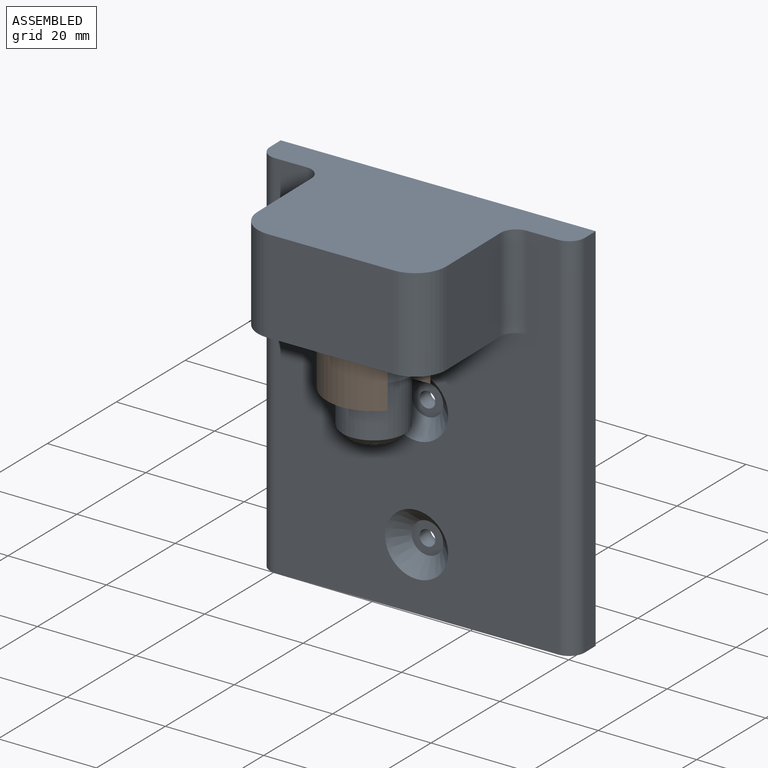
[diagram: assembled view]
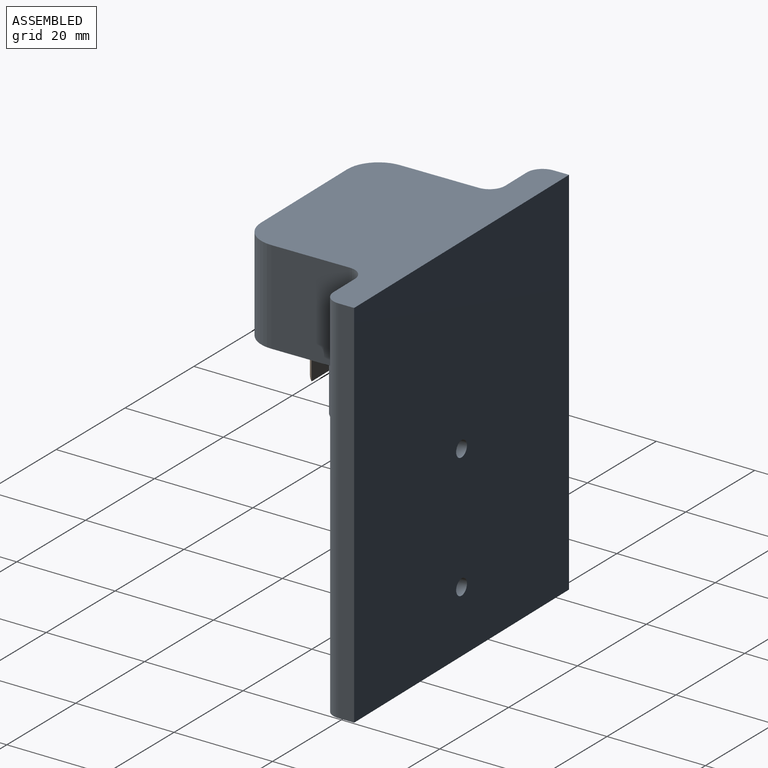
[diagram: assembled view, second angle]
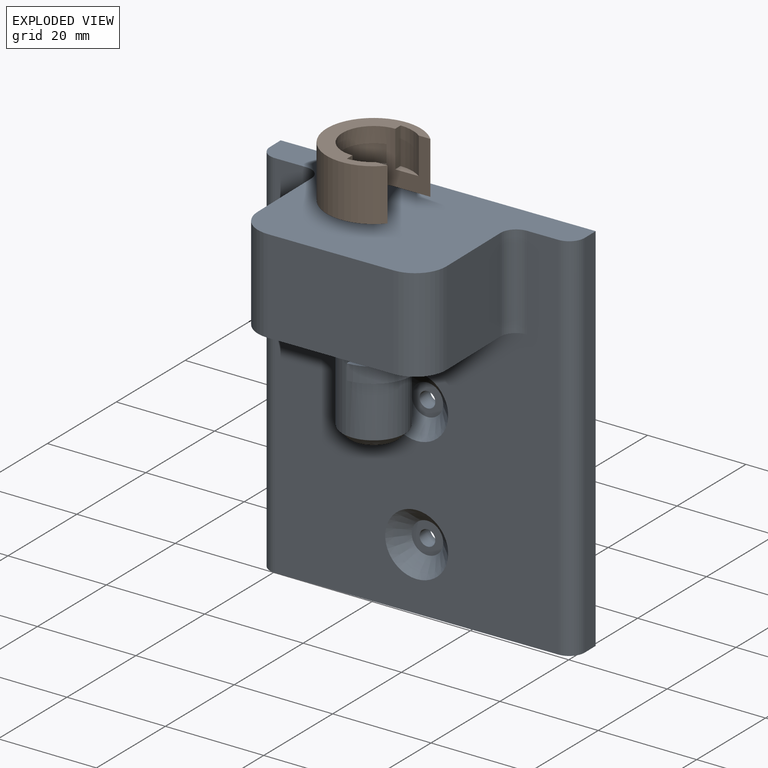
[diagram: exploded view]
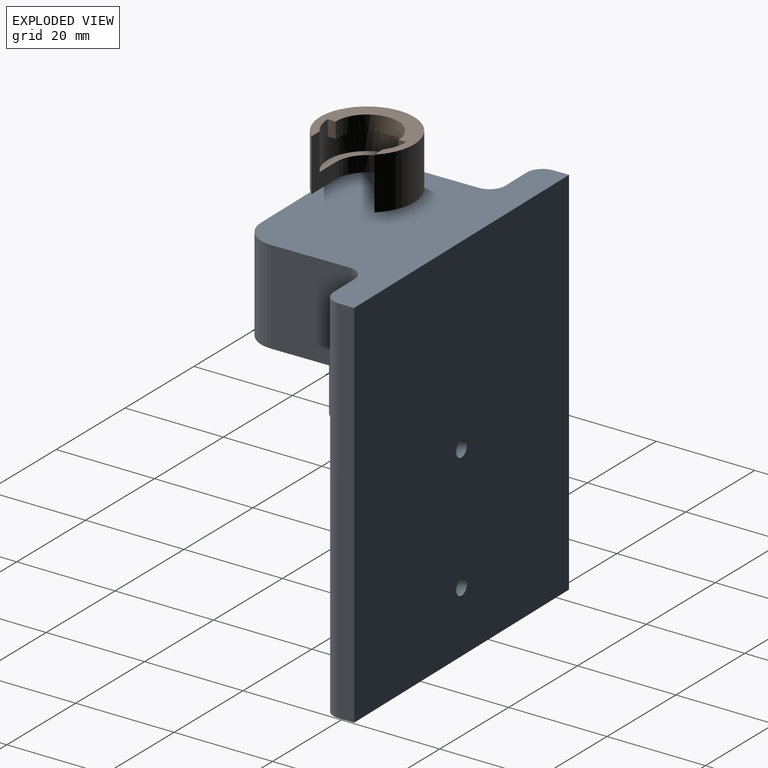
[diagram: exploded view, second angle]
ASSEMBLY  parts=2 mates=2
PART A: 30 faces, bbox 63.5x31.8x76.2 mm
  f0: plane 76.2x57.15mm, normal (0,-1,0), area 3254.7mm2, adj f1,f3,f8,f14,f15,f16,f17,f22
  f1: plane 63.5x31.75mm, normal (0,0,1), area 1353.7mm2, adj f0,f2,f4,f5,f6,f7,f9,f12
  f2: plane 76.2x3.18mm, normal (-1,0,0), area 241.9mm2, adj f1,f3,f5,f16
  f3: plane 63.5x6.35mm, normal (0,0,-1), area 398.9mm2, adj f0,f2,f4,f5,f16,f17
  f4: plane 76.2x3.18mm, normal (1,0,0), area 241.9mm2, adj f1,f3,f5,f17
  f5: plane 76.2x63.5mm, normal (0,1,0), area 4822.9mm2, adj f1,f2,f3,f4,f20,f21
  f6: plane 19.05x15.88mm, normal (1,0,0), area 302.4mm2, adj f1,f8,f13,f15
  f7: plane 19.05x15.88mm, normal (-1,0,0), area 302.4mm2, adj f1,f8,f12,f14
  f8: plane 44.45x25.4mm, normal (0,0,-1), area 828.1mm2, adj f0,f6,f7,f9,f10,f12,f13,f14
  f9: plane 25.4x19.05mm, normal (0,-1,0), area 483.9mm2, adj f1,f8,f12,f13
  f10: cylinder r=6.35mm len=17.46mm, axis (0,0,1), area 633.4mm2, adj f8,f24,f25,f26,f28,f29
  f11: plane 9.53x9.53mm, normal (0,0,-1), area 71.3mm2, adj f24
  f12: cylinder r=6.35mm len=19.05mm, axis (0,0,1), area 190mm2, adj f1,f7,f8,f9
  f13: cylinder r=6.35mm len=19.05mm, axis (0,0,-1), area 190mm2, adj f1,f6,f8,f9
  f14: cylinder r=3.17mm len=19.05mm, axis (0,0,-1), area 95mm2, adj f0,f1,f7,f8
  f15: cylinder r=3.17mm len=19.05mm, axis (0,0,1), area 95mm2, adj f0,f1,f6,f8
  f16: cylinder r=3.17mm len=76.2mm, axis (0,0,1), area 380mm2, adj f0,f1,f2,f3
  f17: cylinder r=3.17mm len=76.2mm, axis (0,0,-1), area 380mm2, adj f0,f1,f3,f4
  f18: plane 6.35x6.35mm, normal (0,-1,0), area 23.8mm2, adj f20,f23
  f19: plane 6.35x6.35mm, normal (0,-1,0), area 23.8mm2, adj f21,f22
  f20: cylinder r=1.59mm len=3.18mm, axis (0,-1,0), area 31.7mm2, adj f5,f18
  f21: cylinder r=1.59mm len=3.18mm, axis (0,-1,0), area 31.7mm2, adj f5,f19
  f22: cone r=3.17mm half-angle=45deg, axis (0,-1,0), area 134.4mm2, adj f0,f19
  f23: cone r=3.17mm half-angle=45deg, axis (0,-1,0), area 134.4mm2, adj f0,f18
  f24: cone r=4.76mm half-angle=45deg, axis (0,0,1), area 78.4mm2, adj f10,f11
  f25: plane 3.18x1.59mm, normal (-1,0,0), area 5mm2, adj f10,f27,f28,f29
  f26: plane 3.18x1.59mm, normal (-1,0,0), area 5mm2, adj f10,f27,f28,f29
  f27: cylinder r=7.94mm len=15.88mm, axis (0,0,1), area 79.2mm2, adj f25,f26,f28,f29
  f28: plane 15.88x7.94mm, normal (0,0,-1), area 35.6mm2, adj f10,f25,f26,f27
  f29: plane 15.88x7.94mm, normal (0,0,1), area 35.6mm2, adj f10,f25,f26,f27
PART B: 14 faces, bbox 16.6x19.1x10.6 mm
  f0: cylinder r=7.94mm len=15.71mm, axis (0,0,1), area 138mm2, adj f2,f3,f4,f8,f9,f12
  f1: cylinder r=6.35mm len=12.7mm, axis (0,0,1), area 133.5mm2, adj f2,f3,f4,f6,f8,f9,f10,f12
  f2: plane 15.71x12.7mm, normal (0,0,1), area 38.2mm2, adj f0,f1,f9,f12
  f3: plane 15.71x7.94mm, normal (0,0,-1), area 33.1mm2, adj f0,f1,f4,f9
  f4: plane 3.18x1.59mm, normal (1,0,0), area 5mm2, adj f0,f1,f3,f8
  f5: cylinder r=7.94mm len=7.46mm, axis (0,0,1), area 38.1mm2, adj f6,f8,f11,f13
  f6: plane 7.46x1.59mm, normal (1,0,0), area 11.8mm2, adj f1,f5,f8,f11
  f7: cylinder r=9.53mm len=19.05mm, axis (0,0,1), area 488.5mm2, adj f8,f10,f12,f13
  f8: plane 19.05x16.62mm, normal (0,0,1), area 100.1mm2, adj f0,f1,f4,f5,f6,f7,f12,f13
  f9: plane 4.28x1.63mm, normal (-1,0,0), area 7mm2, adj f0,f1,f2,f3
  f10: plane 19.05x16.62mm, normal (0,0,-1), area 110.4mm2, adj f1,f7,f12,f13
  f11: plane 4.76x1.59mm, normal (0,0,1), area 5.2mm2, adj f5,f6,f13
  f12: plane 10.63x7.1mm, normal (0,1,0), area 40mm2, adj f0,f1,f2,f7,f8,f10
  f13: plane 10.63x7.1mm, normal (0,-1,0), area 40mm2, adj f1,f5,f7,f8,f10,f11
PLACE A rot(axis=(0,0,1),0.7deg) t=(10.7,-16.07,2.33)mm
PLACE B rot(axis=(0,0,1),0.7deg) t=(10.7,-16.07,2.33)mm
MATE slider B.f0 <-> A.f10  axis (0,0,1) through (10.93,-35.12,17.65)mm
MATE revolute A.f10 <-> B.f0  axis (0,0,1) through (10.93,-35.12,21.38)mm
